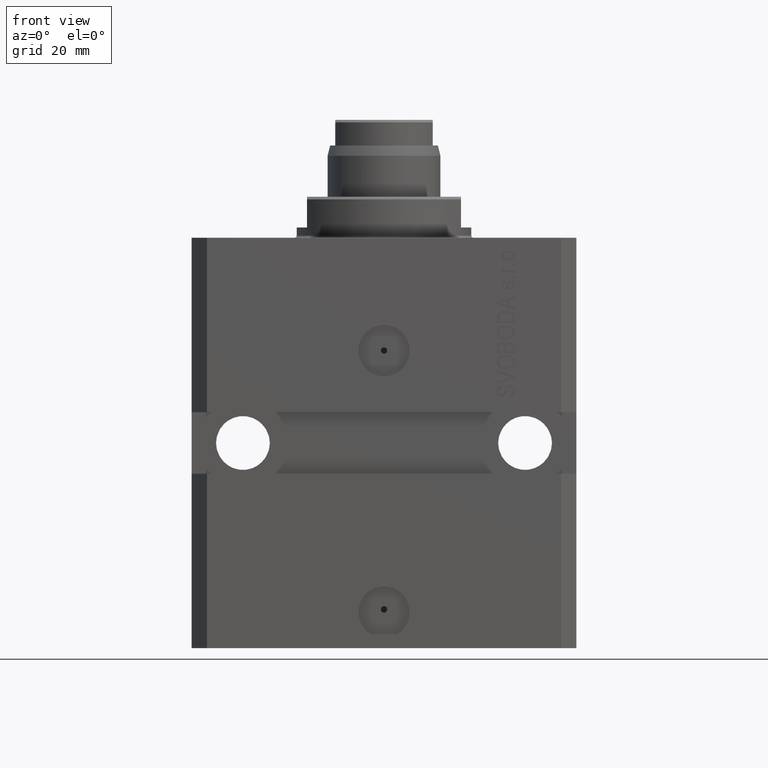
[diagram: clean part render]
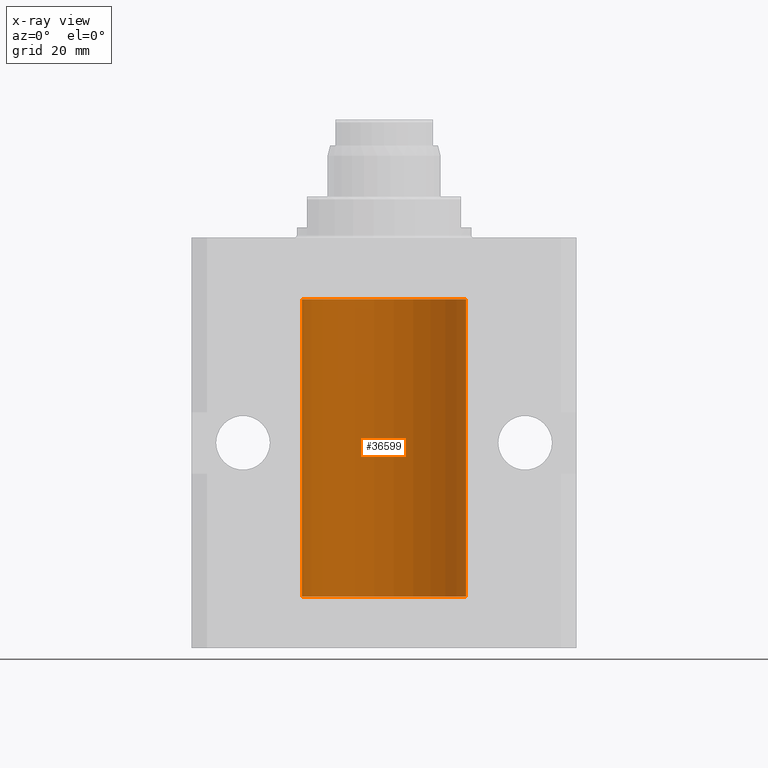
[diagram: x-ray — body ghosted, one internal face saturated and labeled with its STEP entity id]
A machine part, front view, then the same camera in x-ray: the body is ghosted and one INTERNAL B-rep face — a face not visible from any outside direction — is saturated and labeled: STEP entity #36599.
In plain terms, the highlighted cylindrical surface (partial cylindrical patch) has radius 16 mm, axis along (0, 0, 1).
Its self-contained STEP definition (entity closure, byte-faithful):
#129 = EDGE_CURVE ( 'NONE', #30709, #32462, #28136, .T. ) ;
#201 = CARTESIAN_POINT ( 'NONE',  ( 15.98778830858070954, 0.6250000000079481977, -21.99999999999914735 ) ) ;
#928 = CARTESIAN_POINT ( 'NONE',  ( 15.99999999999999645, 0.1631343969470158417, -67.37500000000021316 ) ) ;
#1042 = B_SPLINE_CURVE_WITH_KNOTS ( 'NONE', 3,
 ( #13288, #41685, #5937, #16608, #23463, #38595, #38129, #1913 ),
 .UNSPECIFIED., .F., .F.,
 ( 4, 2, 2, 4 ),
 ( 6.328791551665028553E-19, 0.0002443331572174917989, 0.0004886663144349829473, 0.0009773326288699728335 ),
 .UNSPECIFIED. ) ;
#1123 = ORIENTED_EDGE ( 'NONE', *, *, #129, .T. ) ;
#1447 = DIRECTION ( 'NONE',  ( 1.000000000000000000, 0.000000000000000000, 0.000000000000000000 ) ) ;
#1913 = CARTESIAN_POINT ( 'NONE',  ( 15.98778830858070954, 0.6250000000079481977, -21.99999999999914735 ) ) ;
#3175 = CARTESIAN_POINT ( 'NONE',  ( 16.00000000000000000, 0.000000000000000000, -12.00000000000000000 ) ) ;
#4084 = DIRECTION ( 'NONE',  ( 1.000000000000000000, 0.000000000000000000, 0.000000000000000000 ) ) ;
#4145 = CARTESIAN_POINT ( 'NONE',  ( 15.99711856062700122, 0.3252985083513914577, -21.44140297987715016 ) ) ;
#4375 = CARTESIAN_POINT ( 'NONE',  ( 15.99999999999998934, 0.1631343969470015198, -21.37500000000020961 ) ) ;
#4706 = CARTESIAN_POINT ( 'NONE',  ( 15.99711856062700477, 0.3252985083514284281, -67.44140297987711108 ) ) ;
#5020 = DIRECTION ( 'NONE',  ( 0.000000000000000000, 0.000000000000000000, 1.000000000000000000 ) ) ;
#5118 = EDGE_CURVE ( 'NONE', #35568, #41901, #9965, .T. ) ;
#5753 = CARTESIAN_POINT ( 'NONE',  ( 15.99070366873610283, 0.5574063959867601170, -68.32639436837555991 ) ) ;
#5937 = CARTESIAN_POINT ( 'NONE',  ( 15.99934183755190986, 0.1636877470526782730, -22.60872690654068151 ) ) ;
#6126 = CARTESIAN_POINT ( 'NONE',  ( 0.000000000000000000, 0.000000000000000000, -70.00000000000000000 ) ) ;
#6770 = ORIENTED_EDGE ( 'NONE', *, *, #28627, .T. ) ;
#7082 = VERTEX_POINT ( 'NONE', #3175 ) ;
#8575 = CARTESIAN_POINT ( 'NONE',  ( 15.98778830858070954, 0.6250000000080517815, -67.99999999999916156 ) ) ;
#9444 = DIRECTION ( 'NONE',  ( 1.000000000000000000, 0.000000000000000000, 0.000000000000000000 ) ) ;
#9543 = CARTESIAN_POINT ( 'NONE',  ( 16.00000000000001066, 0.08261762387943044628, -68.62500000000000000 ) ) ;
#9680 = CYLINDRICAL_SURFACE ( 'NONE', #40407, 16.00000000000000000 ) ;
#9724 = CARTESIAN_POINT ( 'NONE',  ( 16.00000000000013145, 3.665532692826917502E-13, -67.37499999999657518 ) ) ;
#9851 = EDGE_CURVE ( 'NONE', #32462, #7082, #24315, .T. ) ;
#9965 = CIRCLE ( 'NONE', #11489, 16.00000000000000000 ) ;
#10630 = EDGE_CURVE ( 'NONE', #41955, #46689, #37043, .T. ) ;
#11489 = AXIS2_PLACEMENT_3D ( 'NONE', #40774, #5020, #4084 ) ;
#11918 = CARTESIAN_POINT ( 'NONE',  ( 16.00000000000000000, 0.000000000000000000, -70.00000000000000000 ) ) ;
#12986 = B_SPLINE_CURVE_WITH_KNOTS ( 'NONE', 3,
 ( #42198, #9543, #41492, #34864, #16181, #5753, #38645, #45752 ),
 .UNSPECIFIED., .F., .F.,
 ( 4, 2, 2, 4 ),
 ( 1.783888443149829469E-18, 0.0002443331572175257886, 0.0004886663144350497342, 0.0009773326288700682433 ),
 .UNSPECIFIED. ) ;
#13288 = CARTESIAN_POINT ( 'NONE',  ( 16.00000000000000000, 6.512442293616765687E-16, -22.62500000000000000 ) ) ;
#15464 = LINE ( 'NONE', #11918, #43927 ) ;
#15565 = EDGE_LOOP ( 'NONE', ( #19532, #42490, #34498, #29484, #31263, #34583, #6770, #1123, #29932, #33419 ) ) ;
#16181 = CARTESIAN_POINT ( 'NONE',  ( 15.99548458234361448, 0.3844468804816183471, -68.49947786696357355 ) ) ;
#16608 = CARTESIAN_POINT ( 'NONE',  ( 15.99707608081894783, 0.3151028052309811089, -22.54594170697727762 ) ) ;
#17007 = CARTESIAN_POINT ( 'NONE',  ( 16.00000000000013145, 3.665532684555111376E-13, -21.37499999999658229 ) ) ;
#17472 = CIRCLE ( 'NONE', #43921, 16.00000000000000000 ) ;
#18126 = CARTESIAN_POINT ( 'NONE',  ( 15.99070695999104252, 0.5461439696926363441, -21.68526802364053196 ) ) ;
#19451 = CARTESIAN_POINT ( 'NONE',  ( 0.000000000000000000, 0.000000000000000000, -12.00000000000000000 ) ) ;
#19532 = ORIENTED_EDGE ( 'NONE', *, *, #42669, .F. ) ;
#20838 = B_SPLINE_CURVE_WITH_KNOTS ( 'NONE', 3,
 ( #22702, #26492, #25559, #44014, #30045, #4706, #928, #39990 ),
 .UNSPECIFIED., .F., .F.,
 ( 4, 2, 2, 4 ),
 ( 0.0009773326288700682433, 0.001221554802188685399, 0.001465776975507302772, 0.001954221322144537518 ),
 .UNSPECIFIED. ) ;
#22539 = CARTESIAN_POINT ( 'NONE',  ( -16.00000000000000000, 1.959434878635764737E-15, -70.00000000000000000 ) ) ;
#22702 = CARTESIAN_POINT ( 'NONE',  ( 15.98778830858070954, 0.6250000000080517815, -67.99999999999916156 ) ) ;
#23463 = CARTESIAN_POINT ( 'NONE',  ( 15.99548458234361092, 0.3844468804815581731, -22.49947786696349894 ) ) ;
#23718 = VECTOR ( 'NONE', #28093, 1000.000000000000000 ) ;
#24315 = LINE ( 'NONE', #27865, #23718 ) ;
#24404 = CARTESIAN_POINT ( 'NONE',  ( -16.00000000000000000, 1.959434878635764737E-15, -70.00000000000000000 ) ) ;
#25000 = EDGE_CURVE ( 'NONE', #35568, #40657, #15464, .T. ) ;
#25222 = CARTESIAN_POINT ( 'NONE',  ( 15.98778830858103817, 0.6249999999996181943, -21.91847885046212951 ) ) ;
#25559 = CARTESIAN_POINT ( 'NONE',  ( 15.98844460043491367, 0.6087869699337551399, -67.83657454967556077 ) ) ;
#26492 = CARTESIAN_POINT ( 'NONE',  ( 15.98778830858103817, 0.6249999999997223332, -67.91847885046213662 ) ) ;
#26738 = FACE_OUTER_BOUND ( 'NONE', #15565, .T. ) ;
#27865 = CARTESIAN_POINT ( 'NONE',  ( 16.00000000000000000, 0.000000000000000000, -70.00000000000000000 ) ) ;
#28093 = DIRECTION ( 'NONE',  ( -0.000000000000000000, -0.000000000000000000, 1.000000000000000000 ) ) ;
#28136 = B_SPLINE_CURVE_WITH_KNOTS ( 'NONE', 3,
 ( #43205, #25222, #39662, #18126, #43445, #4145, #4375, #32800 ),
 .UNSPECIFIED., .F., .F.,
 ( 4, 2, 2, 4 ),
 ( 0.0009773326288699728335, 0.001221554802188567438, 0.001465776975507162259, 0.001954221322144344530 ),
 .UNSPECIFIED. ) ;
#28368 = VECTOR ( 'NONE', #38841, 1000.000000000000000 ) ;
#28595 = EDGE_CURVE ( 'NONE', #7082, #35127, #17472, .T. ) ;
#28627 = EDGE_CURVE ( 'NONE', #46689, #30709, #1042, .T. ) ;
#28961 = EDGE_CURVE ( 'NONE', #38162, #41955, #20838, .T. ) ;
#29484 = ORIENTED_EDGE ( 'NONE', *, *, #39786, .T. ) ;
#29932 = ORIENTED_EDGE ( 'NONE', *, *, #9851, .T. ) ;
#30045 = CARTESIAN_POINT ( 'NONE',  ( 15.99228275317786441, 0.5002975944204781644, -67.61642014570176684 ) ) ;
#30275 = CARTESIAN_POINT ( 'NONE',  ( 16.00000000000000000, 0.000000000000000000, -70.00000000000000000 ) ) ;
#30358 = DIRECTION ( 'NONE',  ( -0.000000000000000000, -0.000000000000000000, 1.000000000000000000 ) ) ;
#30709 = VERTEX_POINT ( 'NONE', #201 ) ;
#31263 = ORIENTED_EDGE ( 'NONE', *, *, #28961, .T. ) ;
#32462 = VERTEX_POINT ( 'NONE', #17007 ) ;
#32800 = CARTESIAN_POINT ( 'NONE',  ( 16.00000000000013145, 3.665532684555111376E-13, -21.37499999999658229 ) ) ;
#33419 = ORIENTED_EDGE ( 'NONE', *, *, #28595, .T. ) ;
#33893 = DIRECTION ( 'NONE',  ( 0.000000000000000000, 0.000000000000000000, 1.000000000000000000 ) ) ;
#33952 = LINE ( 'NONE', #24404, #28368 ) ;
#34498 = ORIENTED_EDGE ( 'NONE', *, *, #25000, .T. ) ;
#34583 = ORIENTED_EDGE ( 'NONE', *, *, #10630, .T. ) ;
#34864 = CARTESIAN_POINT ( 'NONE',  ( 15.99707608081895138, 0.3151028052310259620, -68.54594170697733091 ) ) ;
#35127 = VERTEX_POINT ( 'NONE', #44941 ) ;
#35568 = VERTEX_POINT ( 'NONE', #30275 ) ;
#36573 = DIRECTION ( 'NONE',  ( -0.000000000000000000, -0.000000000000000000, 1.000000000000000000 ) ) ;
#36599 = ADVANCED_FACE ( 'NONE', ( #26738 ), #9680, .F. ) ;
#37043 = LINE ( 'NONE', #37505, #41894 ) ;
#37505 = CARTESIAN_POINT ( 'NONE',  ( 16.00000000000000000, 0.000000000000000000, -70.00000000000000000 ) ) ;
#38129 = CARTESIAN_POINT ( 'NONE',  ( 15.98778830858101685, 0.6250000000001204592, -22.16311639173018833 ) ) ;
#38162 = VERTEX_POINT ( 'NONE', #8575 ) ;
#38595 = CARTESIAN_POINT ( 'NONE',  ( 15.99070366873610993, 0.5574063959866685236, -22.32639436837549951 ) ) ;
#38645 = CARTESIAN_POINT ( 'NONE',  ( 15.98778830858101685, 0.6250000000002223777, -68.16311639173024162 ) ) ;
#38841 = DIRECTION ( 'NONE',  ( -0.000000000000000000, -0.000000000000000000, 1.000000000000000000 ) ) ;
#39662 = CARTESIAN_POINT ( 'NONE',  ( 15.98844460043492077, 0.6087869699336542206, -21.83657454967558209 ) ) ;
#39786 = EDGE_CURVE ( 'NONE', #40657, #38162, #12986, .T. ) ;
#39990 = CARTESIAN_POINT ( 'NONE',  ( 16.00000000000013145, 3.665532692826917502E-13, -67.37499999999657518 ) ) ;
#40407 = AXIS2_PLACEMENT_3D ( 'NONE', #6126, #41174, #9444 ) ;
#40657 = VERTEX_POINT ( 'NONE', #44586 ) ;
#40774 = CARTESIAN_POINT ( 'NONE',  ( 0.000000000000000000, 0.000000000000000000, -70.00000000000000000 ) ) ;
#41174 = DIRECTION ( 'NONE',  ( -0.000000000000000000, -0.000000000000000000, 1.000000000000000000 ) ) ;
#41492 = CARTESIAN_POINT ( 'NONE',  ( 15.99934183755190986, 0.1636877470527013101, -68.60872690654070993 ) ) ;
#41586 = CARTESIAN_POINT ( 'NONE',  ( 16.00000000000000000, 6.512442293616765687E-16, -22.62500000000000000 ) ) ;
#41685 = CARTESIAN_POINT ( 'NONE',  ( 16.00000000000000711, 0.08261762387942239716, -22.62499999999997158 ) ) ;
#41894 = VECTOR ( 'NONE', #36573, 1000.000000000000000 ) ;
#41901 = VERTEX_POINT ( 'NONE', #22539 ) ;
#41955 = VERTEX_POINT ( 'NONE', #9724 ) ;
#42198 = CARTESIAN_POINT ( 'NONE',  ( 16.00000000000000000, -1.835653844722709729E-15, -68.62500000000000000 ) ) ;
#42490 = ORIENTED_EDGE ( 'NONE', *, *, #5118, .F. ) ;
#42669 = EDGE_CURVE ( 'NONE', #41901, #35127, #33952, .T. ) ;
#43205 = CARTESIAN_POINT ( 'NONE',  ( 15.98778830858070954, 0.6250000000079481977, -21.99999999999914735 ) ) ;
#43445 = CARTESIAN_POINT ( 'NONE',  ( 15.99228275317787151, 0.5002975944204001157, -21.61642014570180947 ) ) ;
#43921 = AXIS2_PLACEMENT_3D ( 'NONE', #19451, #33893, #1447 ) ;
#43927 = VECTOR ( 'NONE', #30358, 1000.000000000000000 ) ;
#44014 = CARTESIAN_POINT ( 'NONE',  ( 15.99070695999103542, 0.5461439696927204990, -67.68526802364047512 ) ) ;
#44586 = CARTESIAN_POINT ( 'NONE',  ( 16.00000000000000000, -1.835653844722709729E-15, -68.62500000000000000 ) ) ;
#44941 = CARTESIAN_POINT ( 'NONE',  ( -16.00000000000000000, 1.959434878635764737E-15, -12.00000000000000000 ) ) ;
#45752 = CARTESIAN_POINT ( 'NONE',  ( 15.98778830858070954, 0.6250000000080517815, -67.99999999999916156 ) ) ;
#46689 = VERTEX_POINT ( 'NONE', #41586 ) ;